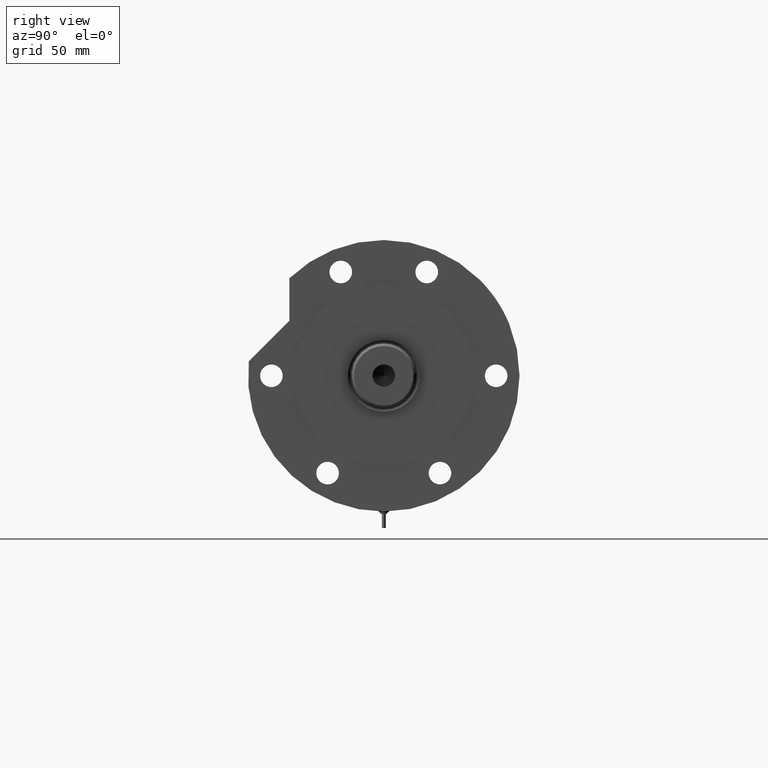
[diagram: clean part render]
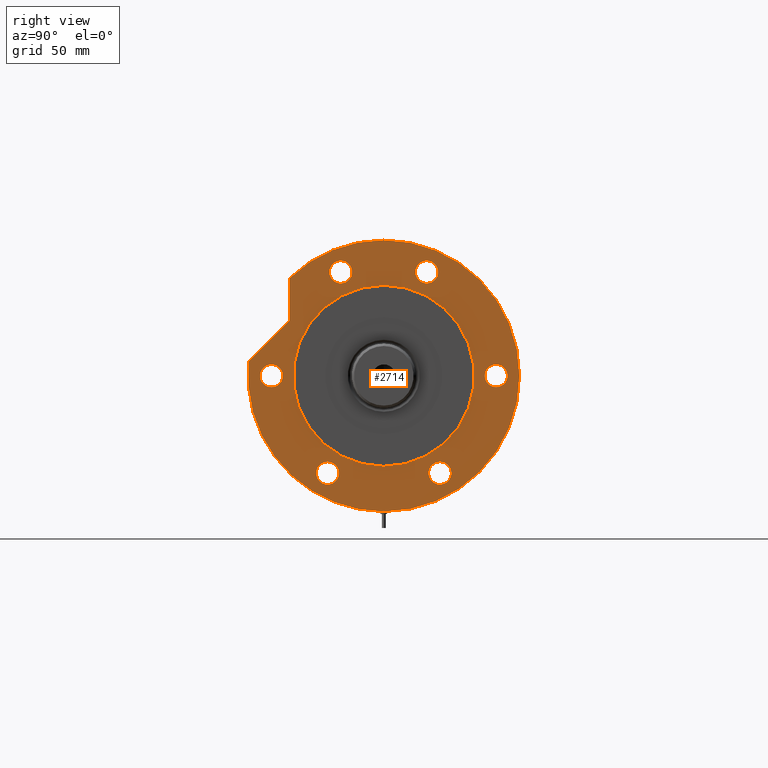
[diagram: same view with one face highlighted and labeled with its STEP entity id]
A machine part, right view. The second image highlights one B-rep face of the part: STEP entity #2714.
In plain terms, the highlighted planar face has unit normal (1, 0, -0).
Its self-contained STEP definition (entity closure, byte-faithful):
#51 = VERTEX_POINT ( 'NONE', #855 ) ;
#54 = CIRCLE ( 'NONE', #7363, 7.250000000000006217 ) ;
#65 = CARTESIAN_POINT ( 'NONE',  ( 0.000000000000000000, 0.000000000000000000, 31.00000000000000000 ) ) ;
#68 = CIRCLE ( 'NONE', #5304, 58.00000000000000000 ) ;
#291 = ORIENTED_EDGE ( 'NONE', *, *, #5656, .T. ) ;
#401 = ORIENTED_EDGE ( 'NONE', *, *, #5477, .F. ) ;
#492 = ORIENTED_EDGE ( 'NONE', *, *, #6950, .F. ) ;
#503 = CIRCLE ( 'NONE', #3425, 58.00000000000000000 ) ;
#549 = CIRCLE ( 'NONE', #3102, 7.250000000000001776 ) ;
#566 = FACE_BOUND ( 'NONE', #5121, .T. ) ;
#572 = DIRECTION ( 'NONE',  ( 1.000000000000000000, 0.000000000000000000, 0.000000000000000000 ) ) ;
#679 = DIRECTION ( 'NONE',  ( 1.000000000000000000, 0.000000000000000000, 0.000000000000000000 ) ) ;
#820 = ORIENTED_EDGE ( 'NONE', *, *, #2395, .F. ) ;
#828 = ORIENTED_EDGE ( 'NONE', *, *, #856, .F. ) ;
#845 = CIRCLE ( 'NONE', #3025, 7.249999999999992895 ) ;
#855 = CARTESIAN_POINT ( 'NONE',  ( 35.23236590573035443, 60.47687547247904405, 31.00000000000000000 ) ) ;
#856 = EDGE_CURVE ( 'NONE', #4693, #6908, #5355, .T. ) ;
#883 = EDGE_CURVE ( 'NONE', #7077, #1980, #4144, .T. ) ;
#897 = CIRCLE ( 'NONE', #7358, 87.00000000000000000 ) ;
#1039 = VECTOR ( 'NONE', #4855, 999.9999999999998863 ) ;
#1115 = DIRECTION ( 'NONE',  ( 1.000000000000000000, 0.000000000000000000, 0.000000000000000000 ) ) ;
#1236 = DIRECTION ( 'NONE',  ( 1.000000000000000000, 0.000000000000000000, 0.000000000000000000 ) ) ;
#1237 = FACE_BOUND ( 'NONE', #3600, .T. ) ;
#1246 = DIRECTION ( 'NONE',  ( 1.000000000000000000, 0.000000000000000000, 0.000000000000000000 ) ) ;
#1323 = EDGE_CURVE ( 'NONE', #4409, #6418, #4022, .T. ) ;
#1383 = EDGE_CURVE ( 'NONE', #51, #5900, #1722, .T. ) ;
#1389 = DIRECTION ( 'NONE',  ( 1.000000000000000000, 0.000000000000000000, 0.000000000000000000 ) ) ;
#1422 = CARTESIAN_POINT ( 'NONE',  ( 73.76932634081251194, 27.55320713028675073, 31.00000000000000000 ) ) ;
#1443 = CARTESIAN_POINT ( 'NONE',  ( -69.60382907247941375, -36.00000000000027711, 31.00000000000000000 ) ) ;
#1629 = ORIENTED_EDGE ( 'NONE', *, *, #1323, .F. ) ;
#1649 = CARTESIAN_POINT ( 'NONE',  ( -62.35382907247942086, -36.00000000000027711, 31.00000000000000000 ) ) ;
#1652 = DIRECTION ( 'NONE',  ( 1.000000000000000000, 0.000000000000000000, -0.000000000000000000 ) ) ;
#1722 = LINE ( 'NONE', #5112, #2321 ) ;
#1739 = DIRECTION ( 'NONE',  ( 1.000000000000000000, 0.000000000000000000, 0.000000000000000000 ) ) ;
#1751 = CARTESIAN_POINT ( 'NONE',  ( -69.60382907247965534, 35.99999999999985079, 31.00000000000000000 ) ) ;
#1811 = ORIENTED_EDGE ( 'NONE', *, *, #2403, .T. ) ;
#1828 = CARTESIAN_POINT ( 'NONE',  ( -62.35382907247965534, 35.99999999999985079, 31.00000000000000000 ) ) ;
#1877 = CARTESIAN_POINT ( 'NONE',  ( 47.85462068910451450, 47.85462068910500477, 31.00000000000000000 ) ) ;
#1899 = EDGE_CURVE ( 'NONE', #1980, #7077, #7466, .T. ) ;
#1980 = VERTEX_POINT ( 'NONE', #2531 ) ;
#2027 = DIRECTION ( 'NONE',  ( 1.000000000000000000, 0.000000000000000000, 0.000000000000000000 ) ) ;
#2058 = AXIS2_PLACEMENT_3D ( 'NONE', #6923, #2168, #572 ) ;
#2149 = EDGE_CURVE ( 'NONE', #5936, #2152, #503, .T. ) ;
#2152 = VERTEX_POINT ( 'NONE', #6512 ) ;
#2168 = DIRECTION ( 'NONE',  ( 0.000000000000000000, 0.000000000000000000, 1.000000000000000000 ) ) ;
#2169 = DIRECTION ( 'NONE',  ( 1.000000000000000000, 0.000000000000000000, 0.000000000000000000 ) ) ;
#2214 = AXIS2_PLACEMENT_3D ( 'NONE', #4319, #6324, #6289 ) ;
#2276 = FACE_BOUND ( 'NONE', #4921, .T. ) ;
#2313 = AXIS2_PLACEMENT_3D ( 'NONE', #3928, #2815, #1115 ) ;
#2321 = VECTOR ( 'NONE', #1652, 1000.000000000000000 ) ;
#2365 = ORIENTED_EDGE ( 'NONE', *, *, #5573, .F. ) ;
#2395 = EDGE_CURVE ( 'NONE', #6908, #4693, #3797, .T. ) ;
#2403 = EDGE_CURVE ( 'NONE', #3382, #5900, #7342, .T. ) ;
#2506 = CARTESIAN_POINT ( 'NONE',  ( 0.000000000000000000, 0.000000000000000000, 31.00000000000000000 ) ) ;
#2522 = CARTESIAN_POINT ( 'NONE',  ( 0.000000000000000000, 0.000000000000000000, 31.00000000000000000 ) ) ;
#2531 = CARTESIAN_POINT ( 'NONE',  ( -55.10382907247942796, -36.00000000000027711, 31.00000000000000000 ) ) ;
#2607 = EDGE_LOOP ( 'NONE', ( #3389, #401, #2757, #291, #1811 ) ) ;
#2714 = ADVANCED_FACE ( 'NONE', ( #2276, #4038, #566, #5807, #2879, #5218, #5276, #1237 ), #5418, .T. ) ;
#2757 = ORIENTED_EDGE ( 'NONE', *, *, #3696, .T. ) ;
#2802 = DIRECTION ( 'NONE',  ( 0.000000000000000000, 0.000000000000000000, 1.000000000000000000 ) ) ;
#2815 = DIRECTION ( 'NONE',  ( 0.000000000000000000, 0.000000000000000000, 1.000000000000000000 ) ) ;
#2854 = CIRCLE ( 'NONE', #6157, 87.00000000000000000 ) ;
#2879 = FACE_BOUND ( 'NONE', #6774, .T. ) ;
#2933 = ORIENTED_EDGE ( 'NONE', *, *, #5710, .F. ) ;
#2982 = DIRECTION ( 'NONE',  ( 0.000000000000000000, 0.000000000000000000, 1.000000000000000000 ) ) ;
#2999 = DIRECTION ( 'NONE',  ( 0.000000000000000000, 0.000000000000000000, 1.000000000000000000 ) ) ;
#3025 = AXIS2_PLACEMENT_3D ( 'NONE', #6911, #2802, #1739 ) ;
#3032 = ORIENTED_EDGE ( 'NONE', *, *, #5858, .F. ) ;
#3093 = CARTESIAN_POINT ( 'NONE',  ( 0.000000000000000000, 72.00000000000000000, 31.00000000000000000 ) ) ;
#3102 = AXIS2_PLACEMENT_3D ( 'NONE', #3093, #4823, #4238 ) ;
#3116 = CIRCLE ( 'NONE', #5683, 7.250000000000001776 ) ;
#3159 = VERTEX_POINT ( 'NONE', #4731 ) ;
#3207 = CIRCLE ( 'NONE', #3449, 7.249999999999992895 ) ;
#3362 = CARTESIAN_POINT ( 'NONE',  ( 66.51932634081252615, -27.55320713028675073, 31.00000000000000000 ) ) ;
#3382 = VERTEX_POINT ( 'NONE', #7147 ) ;
#3389 = ORIENTED_EDGE ( 'NONE', *, *, #1383, .F. ) ;
#3397 = DIRECTION ( 'NONE',  ( 1.000000000000000000, 0.000000000000000000, 0.000000000000000000 ) ) ;
#3416 = DIRECTION ( 'NONE',  ( 1.000000000000000000, 0.000000000000000000, 0.000000000000000000 ) ) ;
#3425 = AXIS2_PLACEMENT_3D ( 'NONE', #65, #4715, #1246 ) ;
#3449 = AXIS2_PLACEMENT_3D ( 'NONE', #3362, #4424, #5102 ) ;
#3585 = DIRECTION ( 'NONE',  ( 1.000000000000000000, 0.000000000000000000, 0.000000000000000000 ) ) ;
#3600 = EDGE_LOOP ( 'NONE', ( #6797, #2933 ) ) ;
#3631 = LINE ( 'NONE', #1877, #1039 ) ;
#3696 = EDGE_CURVE ( 'NONE', #5061, #7044, #897, .T. ) ;
#3699 = DIRECTION ( 'NONE',  ( 0.000000000000000000, 0.000000000000000000, 1.000000000000000000 ) ) ;
#3797 = CIRCLE ( 'NONE', #2214, 7.250000000000001776 ) ;
#3900 = CARTESIAN_POINT ( 'NONE',  ( 66.51932634081252615, 27.55320713028675073, 31.00000000000000000 ) ) ;
#3928 = CARTESIAN_POINT ( 'NONE',  ( -62.35382907247942086, -36.00000000000027711, 31.00000000000000000 ) ) ;
#3959 = AXIS2_PLACEMENT_3D ( 'NONE', #6485, #2999, #679 ) ;
#3988 = EDGE_LOOP ( 'NONE', ( #1629, #6255 ) ) ;
#3994 = CARTESIAN_POINT ( 'NONE',  ( -7.250000000000001776, -72.00000000000000000, 31.00000000000000000 ) ) ;
#3996 = ORIENTED_EDGE ( 'NONE', *, *, #7306, .F. ) ;
#4001 = CARTESIAN_POINT ( 'NONE',  ( 0.000000000000000000, 72.00000000000000000, 31.00000000000000000 ) ) ;
#4002 = DIRECTION ( 'NONE',  ( 0.000000000000000000, 0.000000000000000000, 1.000000000000000000 ) ) ;
#4005 = DIRECTION ( 'NONE',  ( 0.000000000000000000, 0.000000000000000000, 1.000000000000000000 ) ) ;
#4022 = CIRCLE ( 'NONE', #7450, 7.250000000000006217 ) ;
#4038 = FACE_BOUND ( 'NONE', #6733, .T. ) ;
#4043 = AXIS2_PLACEMENT_3D ( 'NONE', #5677, #5797, #3416 ) ;
#4128 = CARTESIAN_POINT ( 'NONE',  ( -62.35382907247965534, 35.99999999999985079, 31.00000000000000000 ) ) ;
#4144 = CIRCLE ( 'NONE', #2313, 7.249999999999992895 ) ;
#4238 = DIRECTION ( 'NONE',  ( 1.000000000000000000, 0.000000000000000000, 0.000000000000000000 ) ) ;
#4318 = DIRECTION ( 'NONE',  ( 0.000000000000000000, 0.000000000000000000, 1.000000000000000000 ) ) ;
#4319 = CARTESIAN_POINT ( 'NONE',  ( 0.000000000000000000, -72.00000000000000000, 31.00000000000000000 ) ) ;
#4348 = EDGE_CURVE ( 'NONE', #7075, #5231, #3207, .T. ) ;
#4409 = VERTEX_POINT ( 'NONE', #1751 ) ;
#4424 = DIRECTION ( 'NONE',  ( 0.000000000000000000, 0.000000000000000000, 1.000000000000000000 ) ) ;
#4446 = EDGE_CURVE ( 'NONE', #6418, #4409, #54, .T. ) ;
#4689 = CARTESIAN_POINT ( 'NONE',  ( 0.000000000000000000, 0.000000000000000000, 31.00000000000000000 ) ) ;
#4693 = VERTEX_POINT ( 'NONE', #3994 ) ;
#4715 = DIRECTION ( 'NONE',  ( 0.000000000000000000, 0.000000000000000000, 1.000000000000000000 ) ) ;
#4731 = CARTESIAN_POINT ( 'NONE',  ( 59.26932634081251905, 27.55320713028675073, 31.00000000000000000 ) ) ;
#4806 = CARTESIAN_POINT ( 'NONE',  ( 62.54236590573034249, 60.47687547247904405, 31.00000000000000000 ) ) ;
#4818 = VERTEX_POINT ( 'NONE', #6023 ) ;
#4820 = CIRCLE ( 'NONE', #5660, 7.249999999999992895 ) ;
#4823 = DIRECTION ( 'NONE',  ( 0.000000000000000000, 0.000000000000000000, 1.000000000000000000 ) ) ;
#4855 = DIRECTION ( 'NONE',  ( 0.7071067811865511255, -0.7071067811865440200, 0.000000000000000000 ) ) ;
#4885 = ORIENTED_EDGE ( 'NONE', *, *, #5259, .F. ) ;
#4921 = EDGE_LOOP ( 'NONE', ( #492, #2365 ) ) ;
#5061 = VERTEX_POINT ( 'NONE', #7511 ) ;
#5102 = DIRECTION ( 'NONE',  ( 1.000000000000000000, 0.000000000000000000, 0.000000000000000000 ) ) ;
#5112 = CARTESIAN_POINT ( 'NONE',  ( 0.000000000000000000, 60.47687547247904405, 31.00000000000000000 ) ) ;
#5121 = EDGE_LOOP ( 'NONE', ( #5192, #3032 ) ) ;
#5133 = AXIS2_PLACEMENT_3D ( 'NONE', #1649, #4005, #3397 ) ;
#5192 = ORIENTED_EDGE ( 'NONE', *, *, #4348, .F. ) ;
#5218 = FACE_BOUND ( 'NONE', #3988, .T. ) ;
#5221 = CARTESIAN_POINT ( 'NONE',  ( 7.250000000000001776, -72.00000000000000000, 31.00000000000000000 ) ) ;
#5231 = VERTEX_POINT ( 'NONE', #5545 ) ;
#5259 = EDGE_CURVE ( 'NONE', #6560, #3159, #4820, .T. ) ;
#5276 = FACE_OUTER_BOUND ( 'NONE', #2607, .T. ) ;
#5304 = AXIS2_PLACEMENT_3D ( 'NONE', #4689, #5908, #2169 ) ;
#5355 = CIRCLE ( 'NONE', #2058, 7.250000000000001776 ) ;
#5362 = DIRECTION ( 'NONE',  ( 0.000000000000000000, 0.000000000000000000, 1.000000000000000000 ) ) ;
#5418 = PLANE ( 'NONE',  #6613 ) ;
#5477 = EDGE_CURVE ( 'NONE', #5061, #51, #3631, .T. ) ;
#5545 = CARTESIAN_POINT ( 'NONE',  ( 73.76932634081251194, -27.55320713028675073, 31.00000000000000000 ) ) ;
#5573 = EDGE_CURVE ( 'NONE', #4818, #5793, #549, .T. ) ;
#5614 = CARTESIAN_POINT ( 'NONE',  ( -55.10382907247964823, 35.99999999999985079, 31.00000000000000000 ) ) ;
#5656 = EDGE_CURVE ( 'NONE', #7044, #3382, #2854, .T. ) ;
#5660 = AXIS2_PLACEMENT_3D ( 'NONE', #3900, #6156, #2027 ) ;
#5677 = CARTESIAN_POINT ( 'NONE',  ( 0.000000000000000000, 0.000000000000000000, 31.00000000000000000 ) ) ;
#5683 = AXIS2_PLACEMENT_3D ( 'NONE', #4001, #6414, #5840 ) ;
#5710 = EDGE_CURVE ( 'NONE', #2152, #5936, #68, .T. ) ;
#5793 = VERTEX_POINT ( 'NONE', #6804 ) ;
#5797 = DIRECTION ( 'NONE',  ( 0.000000000000000000, 0.000000000000000000, 1.000000000000000000 ) ) ;
#5807 = FACE_BOUND ( 'NONE', #6408, .T. ) ;
#5840 = DIRECTION ( 'NONE',  ( 1.000000000000000000, 0.000000000000000000, 0.000000000000000000 ) ) ;
#5858 = EDGE_CURVE ( 'NONE', #5231, #7075, #7017, .T. ) ;
#5900 = VERTEX_POINT ( 'NONE', #4806 ) ;
#5908 = DIRECTION ( 'NONE',  ( 0.000000000000000000, 0.000000000000000000, 1.000000000000000000 ) ) ;
#5936 = VERTEX_POINT ( 'NONE', #6558 ) ;
#6023 = CARTESIAN_POINT ( 'NONE',  ( 7.250000000000001776, 72.00000000000000000, 31.00000000000000000 ) ) ;
#6156 = DIRECTION ( 'NONE',  ( 0.000000000000000000, 0.000000000000000000, 1.000000000000000000 ) ) ;
#6157 = AXIS2_PLACEMENT_3D ( 'NONE', #7382, #4318, #1389 ) ;
#6255 = ORIENTED_EDGE ( 'NONE', *, *, #4446, .F. ) ;
#6289 = DIRECTION ( 'NONE',  ( 1.000000000000000000, 0.000000000000000000, 0.000000000000000000 ) ) ;
#6324 = DIRECTION ( 'NONE',  ( 0.000000000000000000, 0.000000000000000000, 1.000000000000000000 ) ) ;
#6408 = EDGE_LOOP ( 'NONE', ( #828, #820 ) ) ;
#6414 = DIRECTION ( 'NONE',  ( 0.000000000000000000, 0.000000000000000000, 1.000000000000000000 ) ) ;
#6418 = VERTEX_POINT ( 'NONE', #5614 ) ;
#6485 = CARTESIAN_POINT ( 'NONE',  ( 66.51932634081252615, -27.55320713028675073, 31.00000000000000000 ) ) ;
#6512 = CARTESIAN_POINT ( 'NONE',  ( 58.00000000000000000, 7.102951435054648059E-15, 31.00000000000000000 ) ) ;
#6554 = DIRECTION ( 'NONE',  ( 1.000000000000000000, 0.000000000000000000, 0.000000000000000000 ) ) ;
#6558 = CARTESIAN_POINT ( 'NONE',  ( -58.00000000000000000, 0.000000000000000000, 31.00000000000000000 ) ) ;
#6560 = VERTEX_POINT ( 'NONE', #1422 ) ;
#6613 = AXIS2_PLACEMENT_3D ( 'NONE', #2522, #3699, #6695 ) ;
#6695 = DIRECTION ( 'NONE',  ( 1.000000000000000000, 0.000000000000000000, -0.000000000000000000 ) ) ;
#6733 = EDGE_LOOP ( 'NONE', ( #3996, #4885 ) ) ;
#6774 = EDGE_LOOP ( 'NONE', ( #6874, #7539 ) ) ;
#6797 = ORIENTED_EDGE ( 'NONE', *, *, #2149, .F. ) ;
#6804 = CARTESIAN_POINT ( 'NONE',  ( -7.250000000000001776, 72.00000000000000000, 31.00000000000000000 ) ) ;
#6874 = ORIENTED_EDGE ( 'NONE', *, *, #883, .F. ) ;
#6908 = VERTEX_POINT ( 'NONE', #5221 ) ;
#6911 = CARTESIAN_POINT ( 'NONE',  ( 66.51932634081252615, 27.55320713028675073, 31.00000000000000000 ) ) ;
#6923 = CARTESIAN_POINT ( 'NONE',  ( 0.000000000000000000, -72.00000000000000000, 31.00000000000000000 ) ) ;
#6950 = EDGE_CURVE ( 'NONE', #5793, #4818, #3116, .T. ) ;
#7017 = CIRCLE ( 'NONE', #3959, 7.249999999999992895 ) ;
#7044 = VERTEX_POINT ( 'NONE', #7179 ) ;
#7075 = VERTEX_POINT ( 'NONE', #7367 ) ;
#7077 = VERTEX_POINT ( 'NONE', #1443 ) ;
#7147 = CARTESIAN_POINT ( 'NONE',  ( 87.00000000000000000, 1.065442715258197209E-14, 31.00000000000000000 ) ) ;
#7179 = CARTESIAN_POINT ( 'NONE',  ( -87.00000000000000000, 0.000000000000000000, 31.00000000000000000 ) ) ;
#7306 = EDGE_CURVE ( 'NONE', #3159, #6560, #845, .T. ) ;
#7342 = CIRCLE ( 'NONE', #4043, 87.00000000000000000 ) ;
#7358 = AXIS2_PLACEMENT_3D ( 'NONE', #2506, #5362, #6554 ) ;
#7363 = AXIS2_PLACEMENT_3D ( 'NONE', #1828, #4002, #3585 ) ;
#7367 = CARTESIAN_POINT ( 'NONE',  ( 59.26932634081251905, -27.55320713028675073, 31.00000000000000000 ) ) ;
#7382 = CARTESIAN_POINT ( 'NONE',  ( 0.000000000000000000, 0.000000000000000000, 31.00000000000000000 ) ) ;
#7450 = AXIS2_PLACEMENT_3D ( 'NONE', #4128, #2982, #1236 ) ;
#7466 = CIRCLE ( 'NONE', #5133, 7.249999999999992895 ) ;
#7511 = CARTESIAN_POINT ( 'NONE',  ( 9.196694222441541555, 86.51254715576759224, 31.00000000000000000 ) ) ;
#7539 = ORIENTED_EDGE ( 'NONE', *, *, #1899, .F. ) ;